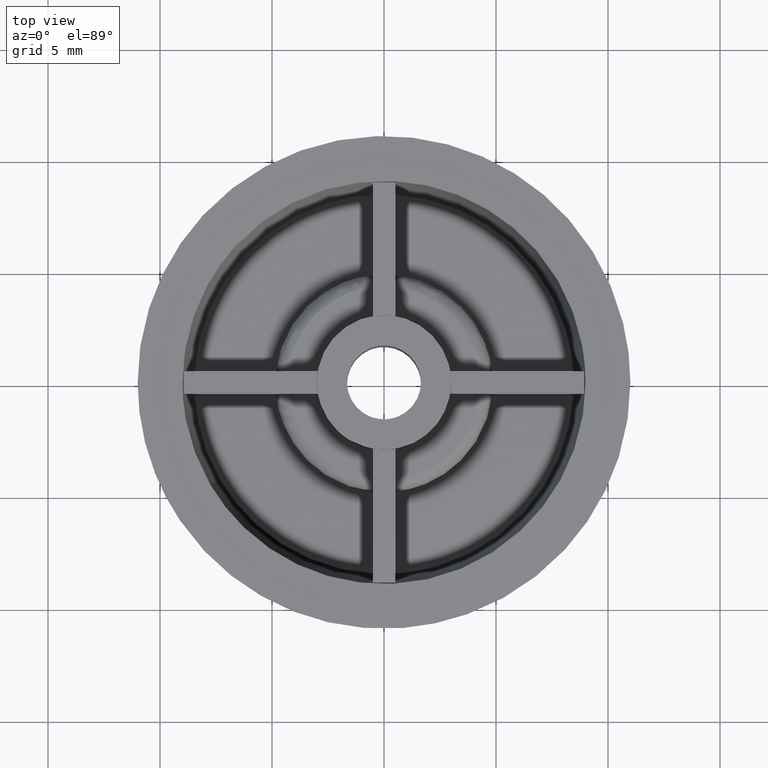
[diagram: clean part render]
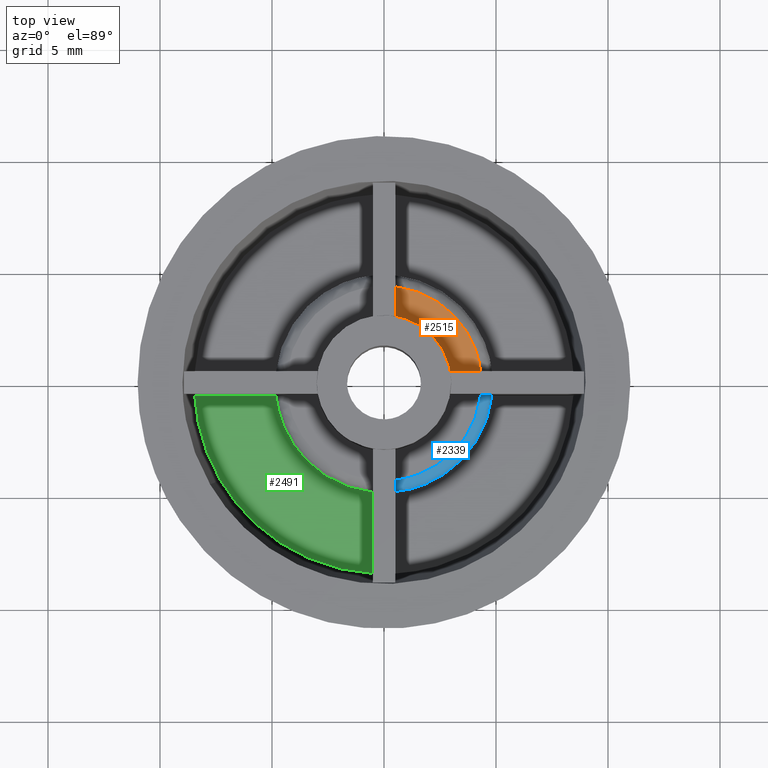
[diagram: same view with three faces highlighted in distinct colors, each labeled with its STEP entity id]
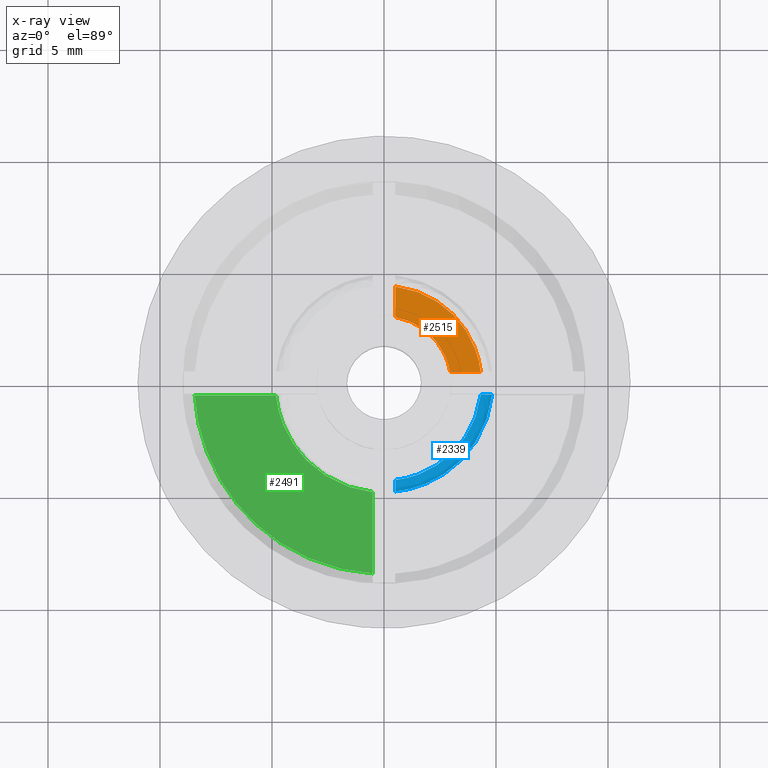
[diagram: x-ray of the same camera — body ghosted, the three highlighted faces saturated]
A machine part, top view with three faces highlighted in distinct colors.
The next image is the same camera in x-ray (body ghosted, the three faces saturated) — at least one of them is partly hidden behind the body in this view.
Their STEP definitions:

[orange] entity #2515 — the highlighted face is a freeform B-spline surface patch.
#968=CARTESIAN_POINT('',(2.958039891549810,0.500000000000000,7.500000000000000));
#969=VERTEX_POINT('',#968);
#975=CARTESIAN_POINT('',(0.500000000000000,2.958039891549810,7.500000000000000));
#976=VERTEX_POINT('',#975);
#977=CARTESIAN_POINT('',(0.500000000000000,2.958039891549808,7.500000000000000));
#978=CARTESIAN_POINT('',(2.602630473405679,2.602630473405679,7.499999999999999));
#979=CARTESIAN_POINT('',(2.958039891549808,0.500000000000000,7.500000000000000));
#987=(BOUNDED_CURVE()B_SPLINE_CURVE(2,(#977,#978,#979),.UNSPECIFIED.,.F.,.U.)CURVE()GEOMETRIC_REPRESENTATION_ITEM()QUASI_UNIFORM_CURVE()RATIONAL_B_SPLINE_CURVE((1.0,0.815067818976154,1.0))REPRESENTATION_ITEM(''));
#988=EDGE_CURVE('',#976,#969,#987,.T.);
#1698=CARTESIAN_POINT('',(0.500000000000000,4.321168823362496,7.500000000000000));
#1699=VERTEX_POINT('',#1698);
#1700=CARTESIAN_POINT('',(0.500000000000000,4.321168823362496,7.500000000000000));
#1701=CARTESIAN_POINT('',(0.500000000000000,2.958039891549810,7.500000000000000));
#1702=QUASI_UNIFORM_CURVE('',1,(#1700,#1701),.UNSPECIFIED.,.F.,.U.);
#1703=EDGE_CURVE('',#1699,#976,#1702,.T.);
#2153=CARTESIAN_POINT('',(4.321168823362496,0.500000000000000,7.500000000000000));
#2154=VERTEX_POINT('',#2153);
#2180=CARTESIAN_POINT('',(2.958039891549810,0.500000000000000,7.500000000000000));
#2181=CARTESIAN_POINT('',(4.321168823362496,0.500000000000000,7.500000000000000));
#2182=QUASI_UNIFORM_CURVE('',1,(#2180,#2181),.UNSPECIFIED.,.F.,.U.);
#2183=EDGE_CURVE('',#969,#2154,#2182,.T.);
#2492=CARTESIAN_POINT('',(0.309132624679210,0.309132624679210,7.500000000000000));
#2493=CARTESIAN_POINT('',(4.512036301175020,0.309132624679210,7.500000000000000));
#2494=CARTESIAN_POINT('',(0.309132624679210,4.512036301175020,7.500000000000000));
#2495=CARTESIAN_POINT('',(4.512036301175020,4.512036301175020,7.500000000000000));
#2496=B_SPLINE_SURFACE_WITH_KNOTS('',1,1,((#2492,#2494),(#2493,#2495)),.UNSPECIFIED.,.F.,.F.,.U.,(2,2),(2,2),(0.0,4.202903676495811),(0.0,4.202903676495810),.UNSPECIFIED.);
#2497=CARTESIAN_POINT('',(0.499999999999999,4.321168823362494,7.500000000000000));
#2498=CARTESIAN_POINT('',(3.924878114266620,3.924878114266619,7.500000000000000));
#2499=CARTESIAN_POINT('',(4.321168823362494,0.500000000000000,7.500000000000000));
#2507=(BOUNDED_CURVE()B_SPLINE_CURVE(2,(#2497,#2498,#2499),.UNSPECIFIED.,.F.,.U.)CURVE()GEOMETRIC_REPRESENTATION_ITEM()QUASI_UNIFORM_CURVE()RATIONAL_B_SPLINE_CURVE((1.0,0.783696820286158,1.0))REPRESENTATION_ITEM(''));
#2508=EDGE_CURVE('',#1699,#2154,#2507,.T.);
#2509=ORIENTED_EDGE('',*,*,#2508,.F.);
#2510=ORIENTED_EDGE('',*,*,#1703,.T.);
#2511=ORIENTED_EDGE('',*,*,#988,.T.);
#2512=ORIENTED_EDGE('',*,*,#2183,.T.);
#2513=EDGE_LOOP('',(#2509,#2510,#2511,#2512));
#2514=FACE_OUTER_BOUND('',#2513,.T.);
#2515=ADVANCED_FACE('',(#2514),#2496,.T.);

[blue] entity #2339 — the highlighted face is a freeform B-spline surface patch.
#2016=CARTESIAN_POINT('',(0.500000000000000,-4.824157957612910,7.0));
#2017=VERTEX_POINT('',#2016);
#2023=CARTESIAN_POINT('',(0.500000000000000,-4.321168823362496,7.500000000000000));
#2024=VERTEX_POINT('',#2023);
#2025=CARTESIAN_POINT('',(0.500000000000000,-4.321168823362496,7.500000000000001));
#2026=CARTESIAN_POINT('',(0.500000000000000,-4.354104439775327,7.500000000000001));
#2027=CARTESIAN_POINT('',(0.500000000000000,-4.386611491670365,7.496819308508016));
#2028=CARTESIAN_POINT('',(0.500000000000000,-4.450785476471813,7.484222786569630));
#2029=CARTESIAN_POINT('',(0.500000000000000,-4.482751372834612,7.474642684612401));
#2030=CARTESIAN_POINT('',(0.500000000000000,-4.543358411413988,7.449793951816661));
#2031=CARTESIAN_POINT('',(0.500000000000000,-4.572220334673177,7.434546935565334));
#2032=CARTESIAN_POINT('',(0.500000000000000,-4.627027409029268,7.398341853405048));
#2033=CARTESIAN_POINT('',(0.500000000000000,-4.652876237310892,7.377360366933232));
#2034=CARTESIAN_POINT('',(0.500000000000000,-4.699675573645632,7.330989780657461));
#2035=CARTESIAN_POINT('',(0.500000000000000,-4.720879793382228,7.305336039335636));
#2036=CARTESIAN_POINT('',(0.500000000000000,-4.757390623676093,7.251120571046708));
#2037=CARTESIAN_POINT('',(0.500000000000000,-4.772930039893388,7.222361516878160));
#2038=CARTESIAN_POINT('',(0.500000000000000,-4.798392647920775,7.161428759248629));
#2039=CARTESIAN_POINT('',(0.500000000000000,-4.808000235998252,7.129916969073062));
#2040=CARTESIAN_POINT('',(0.500000000000000,-4.817638888579238,7.081905937167731));
#2041=CARTESIAN_POINT('',(0.500000000000000,-4.820067912768373,7.065736336463099));
#2042=CARTESIAN_POINT('',(0.500000000000000,-4.823329535113533,7.033059211906473));
#2043=CARTESIAN_POINT('',(0.500000000000000,-4.824157957612914,7.016460637349820));
#2044=CARTESIAN_POINT('',(0.500000000000000,-4.824157957612914,6.999999999999999));
#2045=B_SPLINE_CURVE_WITH_KNOTS('',3,(#2025,#2026,#2027,#2028,#2029,#2030,#2031,#2032,#2033,#2034,#2035,#2036,#2037,#2038,#2039,#2040,#2041,#2042,#2043,#2044),.UNSPECIFIED.,.F.,.U.,(4,2,2,2,2,2,2,2,2,4),(0.0,0.125000000000000,0.249999999999999,0.374999999999999,0.499999999999999,0.624999999999998,0.749999999999998,0.874999999999998,0.937499999999999,1.0),.UNSPECIFIED.);
#2046=EDGE_CURVE('',#2024,#2017,#2045,.T.);
#2086=CARTESIAN_POINT('',(4.321168823362496,-0.500000000000000,7.500000000000000));
#2087=VERTEX_POINT('',#2086);
#2093=CARTESIAN_POINT('',(4.824157957612910,-0.500000000000000,7.0));
#2094=VERTEX_POINT('',#2093);
#2095=CARTESIAN_POINT('',(4.824157957612910,-0.500000000000000,7.0));
#2096=CARTESIAN_POINT('',(4.824157957612935,-0.500000000000000,7.032682623571015));
#2097=CARTESIAN_POINT('',(4.820968153100822,-0.500000000000000,7.065265754354404));
#2098=CARTESIAN_POINT('',(4.807949753201066,-0.500000000000000,7.130224946237718));
#2099=CARTESIAN_POINT('',(4.798325595366556,-0.500000000000000,7.161555913515394));
#2100=CARTESIAN_POINT('',(4.779442092357812,-0.500000000000000,7.206794490367465));
#2101=CARTESIAN_POINT('',(4.772399546948273,-0.500000000000000,7.221585130218744));
#2102=CARTESIAN_POINT('',(4.756785939476205,-0.500000000000000,7.250576115146900));
#2103=CARTESIAN_POINT('',(4.748181038272666,-0.500000000000000,7.264810965628993));
#2104=CARTESIAN_POINT('',(4.720614786465848,-0.500000000000000,7.305699308595137));
#2105=CARTESIAN_POINT('',(4.699774272001492,-0.500000000000000,7.330863044105440));
#2106=CARTESIAN_POINT('',(4.653221805879428,-0.500000000000000,7.377046631881691));
#2107=CARTESIAN_POINT('',(4.627317924514075,-0.500000000000000,7.398111125847948));
#2108=CARTESIAN_POINT('',(4.572754122337948,-0.500000000000000,7.434232553741875));
#2109=CARTESIAN_POINT('',(4.543870434620352,-0.500000000000000,7.449561429163289));
#2110=CARTESIAN_POINT('',(4.482828028923404,-0.500000000000000,7.474633633419303));
#2111=CARTESIAN_POINT('',(4.451162392302462,-0.500000000000000,7.484120910971768));
#2112=CARTESIAN_POINT('',(4.387061020142461,-0.500000000000000,7.496758606523577));
#2113=CARTESIAN_POINT('',(4.354161604594413,-0.500000000000000,7.500000000000000));
#2114=CARTESIAN_POINT('',(4.321168823362496,-0.500000000000000,7.500000000000001));
#2115=B_SPLINE_CURVE_WITH_KNOTS('',3,(#2095,#2096,#2097,#2098,#2099,#2100,#2101,#2102,#2103,#2104,#2105,#2106,#2107,#2108,#2109,#2110,#2111,#2112,#2113,#2114),.UNSPECIFIED.,.F.,.U.,(4,2,2,2,2,2,2,2,2,4),(0.0,0.125000000000001,0.250000000000002,0.312500000000003,0.375000000000003,0.500000000000003,0.625000000000002,0.750000000000001,0.875000000000001,1.0),.UNSPECIFIED.);
#2116=EDGE_CURVE('',#2094,#2087,#2115,.T.);
#2287=CARTESIAN_POINT('',(4.321168823362494,-0.499999999999999,7.500000000000000));
#2288=CARTESIAN_POINT('',(3.924878114266619,-3.924878114266617,7.500000000000000));
#2289=CARTESIAN_POINT('',(0.500000000000002,-4.321168823362493,7.500000000000000));
#2297=(BOUNDED_CURVE()B_SPLINE_CURVE(2,(#2287,#2288,#2289),.UNSPECIFIED.,.F.,.U.)CURVE()GEOMETRIC_REPRESENTATION_ITEM()QUASI_UNIFORM_CURVE()RATIONAL_B_SPLINE_CURVE((1.0,0.783696820286158,1.0))REPRESENTATION_ITEM(''));
#2298=EDGE_CURVE('',#2087,#2024,#2297,.T.);
#2304=CARTESIAN_POINT('',(4.311602959070798,-0.176924146006478,7.498789681149944));
#2305=CARTESIAN_POINT('',(4.148626445420058,-4.148626338028569,7.498789681149944));
#2306=CARTESIAN_POINT('',(0.176924257616783,-4.311602954490931,7.498789681149944));
#2307=CARTESIAN_POINT('',(4.884657860768360,-0.200439124092382,7.538768598005984));
#2308=CARTESIAN_POINT('',(4.700020148047179,-4.700020026382297,7.538768598005984));
#2309=CARTESIAN_POINT('',(0.200439250536806,-4.884657855579784,7.538768598005984));
#2310=CARTESIAN_POINT('',(4.844712576035746,-0.198799992322738,6.965231436331488));
#2311=CARTESIAN_POINT('',(4.661584775823743,-4.661584655153797,6.965231436331488));
#2312=CARTESIAN_POINT('',(0.198800117733137,-4.844712570889599,6.965231436331488));
#2320=(BOUNDED_SURFACE()B_SPLINE_SURFACE(2,2,((#2304,#2307,#2310),(#2305,#2308,#2311),(#2306,#2309,#2312)),.UNSPECIFIED.,.F.,.F.,.U.)B_SPLINE_SURFACE_WITH_KNOTS((3,3),(3,3),(0.0,7.571649769728039),(0.0,0.911186994557409),.UNSPECIFIED.)GEOMETRIC_REPRESENTATION_ITEM()RATIONAL_B_SPLINE_SURFACE(((0.847157096109871,0.555925618265416,0.847157085440967),(0.623087040797327,0.408885258683470,0.623087032950310),(0.847157087548828,0.555925612647446,0.847157076879925)))REPRESENTATION_ITEM('')SURFACE());
#2321=ORIENTED_EDGE('',*,*,#2298,.T.);
#2322=ORIENTED_EDGE('',*,*,#2046,.T.);
#2323=CARTESIAN_POINT('',(4.824157957612914,-0.499999999999999,7.0));
#2324=CARTESIAN_POINT('',(4.418069521465947,-4.418069521465944,7.0));
#2325=CARTESIAN_POINT('',(0.500000000000003,-4.824157957612914,7.0));
#2333=(BOUNDED_CURVE()B_SPLINE_CURVE(2,(#2323,#2324,#2325),.UNSPECIFIED.,.F.,.U.)CURVE()GEOMETRIC_REPRESENTATION_ITEM()QUASI_UNIFORM_CURVE()RATIONAL_B_SPLINE_CURVE((1.0,0.776236741430188,1.0))REPRESENTATION_ITEM(''));
#2334=EDGE_CURVE('',#2094,#2017,#2333,.T.);
#2335=ORIENTED_EDGE('',*,*,#2334,.F.);
#2336=ORIENTED_EDGE('',*,*,#2116,.T.);
#2337=EDGE_LOOP('',(#2321,#2322,#2335,#2336));
#2338=FACE_OUTER_BOUND('',#2337,.T.);
#2339=ADVANCED_FACE('',(#2338),#2320,.T.);

[green] entity #2491 — the highlighted face is a freeform B-spline surface patch.
#1172=CARTESIAN_POINT('',(-0.500000000000000,-8.455818150834650,5.500000000000000));
#1173=VERTEX_POINT('',#1172);
#1174=CARTESIAN_POINT('',(-7.304974248533831,-4.288147458510144,5.499998393285080));
#1175=VERTEX_POINT('',#1174);
#1176=CARTESIAN_POINT('',(-0.500000000000000,-8.455818150834650,5.500000000000000));
#1177=CARTESIAN_POINT('',(-5.015205583428907,-8.188830001754926,5.499999196642541));
#1178=CARTESIAN_POINT('',(-7.304974248533831,-4.288147458510145,5.499998393285080));
#1186=(BOUNDED_CURVE()B_SPLINE_CURVE(2,(#1176,#1177,#1178),.UNSPECIFIED.,.F.,.U.)B_SPLINE_CURVE_WITH_KNOTS((3,3),(0.0,0.668386227466211),.UNSPECIFIED.)CURVE()GEOMETRIC_REPRESENTATION_ITEM()RATIONAL_B_SPLINE_CURVE((1.0,0.831307852100957,0.888118720876741))REPRESENTATION_ITEM(''));
#1187=EDGE_CURVE('',#1173,#1175,#1186,.T.);
#1414=CARTESIAN_POINT('',(-8.455818150834650,-0.500000000000000,5.500000000000000));
#1415=VERTEX_POINT('',#1414);
#1416=CARTESIAN_POINT('',(-7.304974248533831,-4.288147458510145,5.499998393285080));
#1417=CARTESIAN_POINT('',(-8.335641766669864,-2.532377874779220,5.499999196642540));
#1418=CARTESIAN_POINT('',(-8.455818150834650,-0.500000000000000,5.500000000000000));
#1426=(BOUNDED_CURVE()B_SPLINE_CURVE(2,(#1416,#1417,#1418),.UNSPECIFIED.,.F.,.U.)B_SPLINE_CURVE_WITH_KNOTS((3,3),(0.668386227466211,1.0),.UNSPECIFIED.)CURVE()GEOMETRIC_REPRESENTATION_ITEM()RATIONAL_B_SPLINE_CURVE((0.888118720876741,0.916304918828601,1.0))REPRESENTATION_ITEM(''));
#1427=EDGE_CURVE('',#1175,#1415,#1426,.T.);
#1881=CARTESIAN_POINT('',(-4.824157981455111,-0.500000001228962,5.500000000000000));
#1882=VERTEX_POINT('',#1881);
#1883=CARTESIAN_POINT('',(-8.455818150834650,-0.500000000000000,5.500000000000000));
#1884=CARTESIAN_POINT('',(-4.824157981455111,-0.500000001228962,5.500000000000000));
#1885=QUASI_UNIFORM_CURVE('',1,(#1883,#1884),.UNSPECIFIED.,.F.,.U.);
#1886=EDGE_CURVE('',#1415,#1882,#1885,.T.);
#1988=CARTESIAN_POINT('',(-0.500000001228962,-4.824157981455111,5.500000000000000));
#1989=VERTEX_POINT('',#1988);
#1995=CARTESIAN_POINT('',(-0.500000001228962,-4.824157981455111,5.500000000000000));
#1996=CARTESIAN_POINT('',(-0.500000000000000,-8.455818150834650,5.500000000000000));
#1997=QUASI_UNIFORM_CURVE('',1,(#1995,#1996),.UNSPECIFIED.,.F.,.U.);
#1998=EDGE_CURVE('',#1989,#1173,#1997,.T.);
#2462=CARTESIAN_POINT('',(-0.500000001228962,-4.824157981455114,5.500000000000000));
#2463=CARTESIAN_POINT('',(-4.418069544098614,-4.418069544098615,5.500000000000000));
#2464=CARTESIAN_POINT('',(-4.824157981455114,-0.500000001228964,5.500000000000000));
#2472=(BOUNDED_CURVE()B_SPLINE_CURVE(2,(#2462,#2463,#2464),.UNSPECIFIED.,.F.,.U.)CURVE()GEOMETRIC_REPRESENTATION_ITEM()QUASI_UNIFORM_CURVE()RATIONAL_B_SPLINE_CURVE((1.0,0.776236741269582,1.0))REPRESENTATION_ITEM(''));
#2473=EDGE_CURVE('',#1989,#1882,#2472,.T.);
#2479=CARTESIAN_POINT('',(-8.853211326732451,-8.853211326732451,5.500000000000000));
#2480=CARTESIAN_POINT('',(-0.102606681841085,-8.853211326732451,5.500000000000000));
#2481=CARTESIAN_POINT('',(-8.853211326732451,-0.102606681841085,5.500000000000000));
#2482=CARTESIAN_POINT('',(-0.102606681841085,-0.102606681841085,5.500000000000000));
#2483=B_SPLINE_SURFACE_WITH_KNOTS('',1,1,((#2479,#2481),(#2480,#2482)),.UNSPECIFIED.,.F.,.F.,.U.,(2,2),(2,2),(0.0,8.750604644891366),(0.0,8.750604644891366),.UNSPECIFIED.);
#2484=ORIENTED_EDGE('',*,*,#2473,.T.);
#2485=ORIENTED_EDGE('',*,*,#1886,.F.);
#2486=ORIENTED_EDGE('',*,*,#1427,.F.);
#2487=ORIENTED_EDGE('',*,*,#1187,.F.);
#2488=ORIENTED_EDGE('',*,*,#1998,.F.);
#2489=EDGE_LOOP('',(#2484,#2485,#2486,#2487,#2488));
#2490=FACE_OUTER_BOUND('',#2489,.T.);
#2491=ADVANCED_FACE('',(#2490),#2483,.T.);